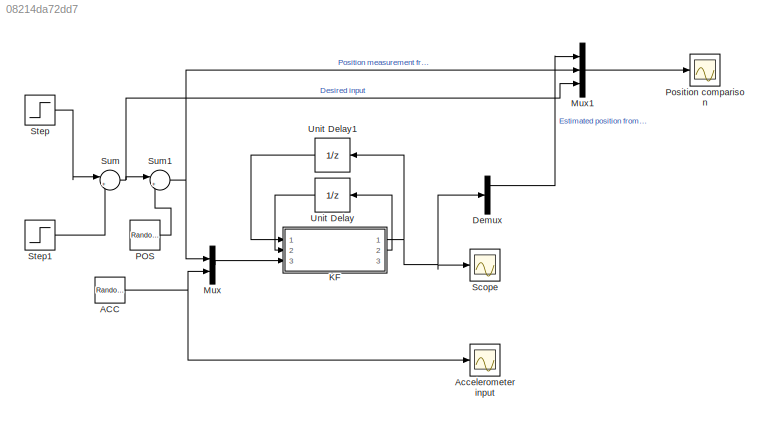
MODEL slx_08214da72dd7
KIND model
CONFIG AbsTol = auto
CONFIG EnableMultiTasking = off
CONFIG FixedStep = auto
CONFIG MaxStep = auto
CONFIG MinStep = auto
CONFIG RelTol = 1e-3
CONFIG SampleTimeConstraint = Unconstrained
CONFIG Solver = VariableStepAuto
CONFIG SolverName = VariableStepAuto
CONFIG StartTime = 0.0
CONFIG StopTime = 15
BLOCK [RandomNumber] ACC
  Mean = 100
  SampleTime = 0.1
  Variance = 13.82
BLOCK [Scope] Accelerometer input
  Floating = off
  NumInputPorts = 1
  Ports = [1]
  ScopeSpecificationString = Simulink.scopes.TimeScopeBlockCfg('CurrentConfiguration', extmgr.ConfigurationSet(extmgr.Configuration('Core','General UI',true),extmgr.Configuration('Core','Source UI',true),extmgr.Configuration('Sources','WiredSimulink',true,'DataLoggingVariableName','ScopeData2'),extmgr.Configuration('Visuals','Time Domain',true,'SerializedDisplays',{struct('MinYLimReal','86.79318','MaxYLimReal','112.06613','YL...<+1401ch>
BLOCK [Demux] Demux
  Outputs = 3
  Ports = [1, 3]
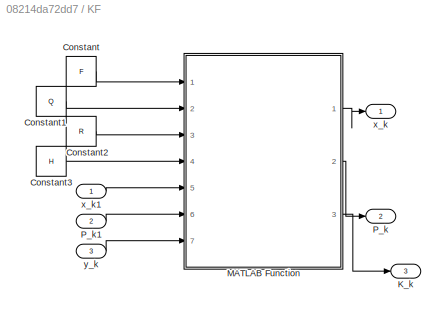
BLOCK [SubSystem] KF
  Ports = [3, 3]
  RequestExecContextInheritance = off
BLOCK [Constant] KF/Constant
  Value = F
  VectorParams1D = off
BLOCK [Constant] KF/Constant1
  Value = Q
  VectorParams1D = off
BLOCK [Constant] KF/Constant2
  Value = R
  VectorParams1D = off
BLOCK [Constant] KF/Constant3
  Value = H
  VectorParams1D = off
BLOCK [Outport] KF/K_k
  Port = 3
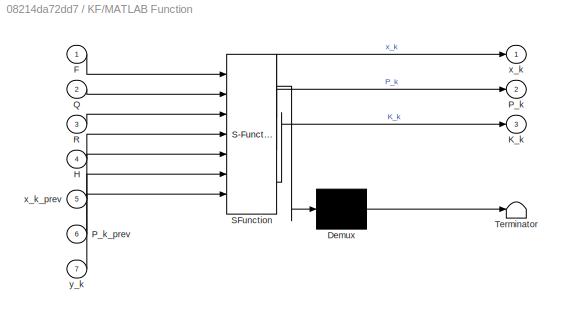
BLOCK [SubSystem] KF/MATLAB Function
  ErrorFcn = Stateflow.Translate.translate
  PermitHierarchicalResolution = ExplicitOnly
  Ports = [7, 3]
  RequestExecContextInheritance = off
  SFBlockType = MATLAB Function
  TreatAsAtomicUnit = on
BLOCK [Demux] KF/MATLAB Function/ Demux 
  Outputs = 1
  Ports = [1, 1]
BLOCK [S-Function] KF/MATLAB Function/ SFunction 
  EnableBusSupport = on
  FunctionName = sf_sfun
  PortCounts = [7 4]
  Ports = [7, 4]
  SFcnIsStateOwnerBlock = off
  SFunctionDeploymentMode = off
  Tag = Stateflow S-Function 2
BLOCK [Terminator] KF/MATLAB Function/ Terminator 
BLOCK [Inport] KF/MATLAB Function/F
BLOCK [Inport] KF/MATLAB Function/H
  Port = 4
BLOCK [Outport] KF/MATLAB Function/K_k
  Port = 3
BLOCK [Outport] KF/MATLAB Function/P_k
  Port = 2
BLOCK [Inport] KF/MATLAB Function/P_k_prev
  Port = 6
BLOCK [Inport] KF/MATLAB Function/Q
  Port = 2
BLOCK [Inport] KF/MATLAB Function/R
  Port = 3
BLOCK [Outport] KF/MATLAB Function/x_k
BLOCK [Inport] KF/MATLAB Function/x_k_prev
  Port = 5
BLOCK [Inport] KF/MATLAB Function/y_k
  Port = 7
BLOCK [Outport] KF/P_k
  Port = 2
BLOCK [Inport] KF/P_k1
  Port = 2
BLOCK [Outport] KF/x_k
BLOCK [Inport] KF/x_k1
BLOCK [Inport] KF/y_k
  Port = 3
BLOCK [Mux] Mux
  DisplayOption = bar
  Inputs = 2
  Ports = [2, 1]
BLOCK [Mux] Mux1
  DisplayOption = bar
  Inputs = 3
  Ports = [3, 1]
BLOCK [RandomNumber] POS
  SampleTime = .1
  Variance = 39.61
BLOCK [Scope] Position comparison
  Floating = off
  NumInputPorts = 1
  Ports = [1]
  ScopeSpecificationString = Simulink.scopes.TimeScopeBlockCfg('CurrentConfiguration', extmgr.ConfigurationSet(extmgr.Configuration('Core','General UI',true),extmgr.Configuration('Core','Source UI',true),extmgr.Configuration('Sources','WiredSimulink',true,'DataLoggingVariableName','ScopeData3'),extmgr.Configuration('Visuals','Time Domain',true,'SerializedDisplays',{struct('MinYLimReal','-13.08108','MaxYLimReal','73.89367','YL...<+1499ch>
BLOCK [Scope] Scope
  Floating = off
  NumInputPorts = 1
  Ports = [1]
  ScopeSpecificationString = Simulink.scopes.TimeScopeBlockCfg('CurrentConfiguration', extmgr.ConfigurationSet(extmgr.Configuration('Core','General UI',true),extmgr.Configuration('Core','Source UI',true),extmgr.Configuration('Sources','WiredSimulink',true),extmgr.Configuration('Visuals','Time Domain',true,'SerializedDisplays',{struct('MinYLimReal','-14.70655','MaxYLimReal','74.07428','YLabelReal','','MinYLimMag','0.00000','Ma...<+1405ch>
BLOCK [Step] Step
  After = 50
  SampleTime = 0
BLOCK [Step] Step1
  After = -25
  SampleTime = 0
  Time = 5
BLOCK [Sum] Sum
  Inputs = |++
  Ports = [2, 1]
BLOCK [Sum] Sum1
  Inputs = |++
  Ports = [2, 1]
BLOCK [UnitDelay] Unit Delay
  HasFrameUpgradeWarning = on
  InitialCondition = eye(3)
  NameLocation = top
  SampleTime = -1
BLOCK [UnitDelay] Unit Delay1
  HasFrameUpgradeWarning = on
  InitialCondition = [0; 0; 0]
  NameLocation = top
  SampleTime = -1
NET ACC:1 -> Accelerometer input:1, Mux:2
LINE Demux:1 -> Mux1:1
LINE KF/Constant1:1 -> KF/MATLAB Function:2
LINE KF/Constant2:1 -> KF/MATLAB Function:3
LINE KF/Constant3:1 -> KF/MATLAB Function:4
LINE KF/Constant:1 -> KF/MATLAB Function:1
LINE KF/MATLAB Function:1 -> KF/x_k:1
LINE KF/MATLAB Function:2 -> KF/P_k:1
LINE KF/MATLAB Function:3 -> KF/K_k:1
LINE KF/P_k1:1 -> KF/MATLAB Function:6
LINE KF/x_k1:1 -> KF/MATLAB Function:5
LINE KF/y_k:1 -> KF/MATLAB Function:7
NET KF:1 -> Demux:1, Scope:1, Unit Delay1:1
LINE KF:2 -> Unit Delay:1
LINE Mux1:1 -> Position comparison:1
LINE Mux:1 -> KF:3
LINE POS:1 -> Sum1:2
LINE Step1:1 -> Sum:2
LINE Step:1 -> Sum:1
NET Sum1:1 -> Mux1:2, Mux:1
NET Sum:1 -> Mux1:3, Sum1:1
LINE Unit Delay1:1 -> KF:1
LINE Unit Delay:1 -> KF:2
note: NET lines group one-source signal fan-out (src -> all destinations, sorted); 1:1 wires keep LINE
CHART KF/MATLAB Function states=1 transitions=1
  STATE_LABEL 'eML_blk_kernel()'
  STATE_LABEL "SCRIPT:\nfunction [x_k, P_k, K_k] = KF(F, Q, R, H, x_k_prev, P_k_prev, y_k)\n    x_k_m = F * x_k_prev;\n    P_k_m = F * P_k_prev * (F') + Q;\n    \n    W_k = H * P_k_m * (H') + R;\n    K_k = P_k_m * (H') * (W_k)^(-1);\n    y_k_m = H * x_k_m;\n    x_k = x_k_m + K_k * (y_k - y_k_m);\n    P_k = P_k_m - K_k * H * P_k_m - P_k_m * (H') * (K_k') + K_k * W_k * (K_k');\n\nend\n"
CHART  states=0 transitions=0
